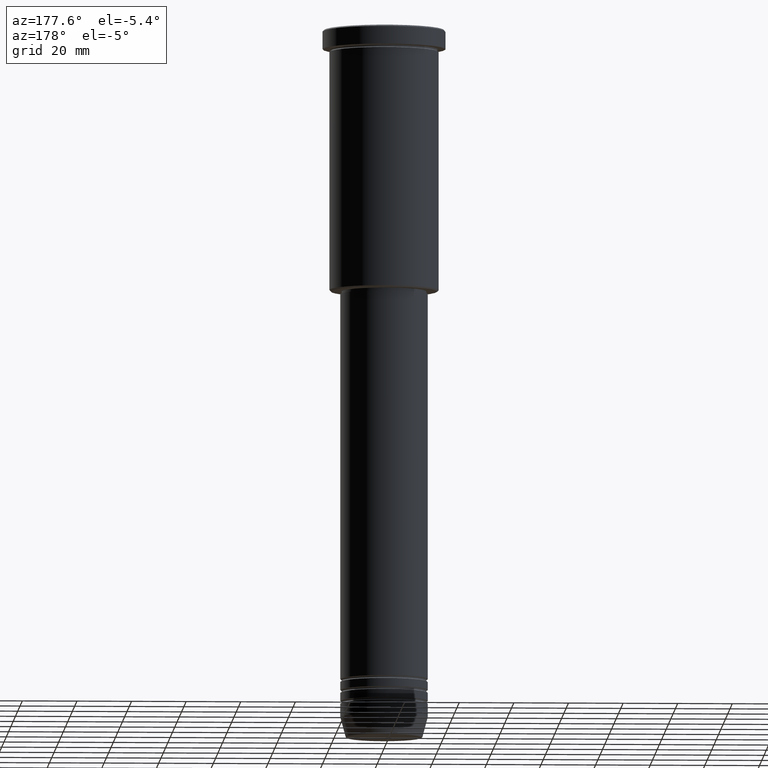
[diagram: clean part render]
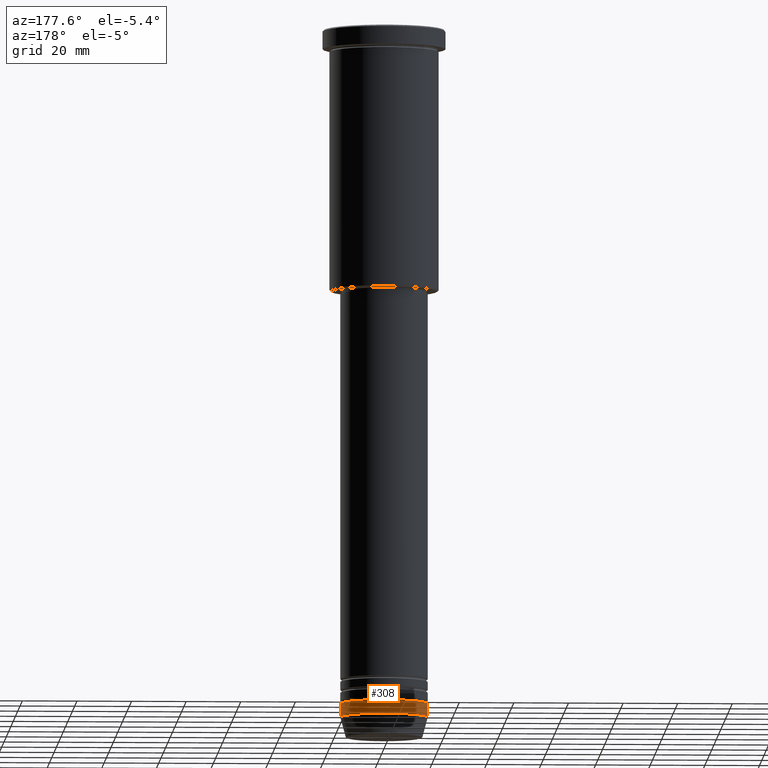
[diagram: same view with one face highlighted and labeled with its STEP entity id]
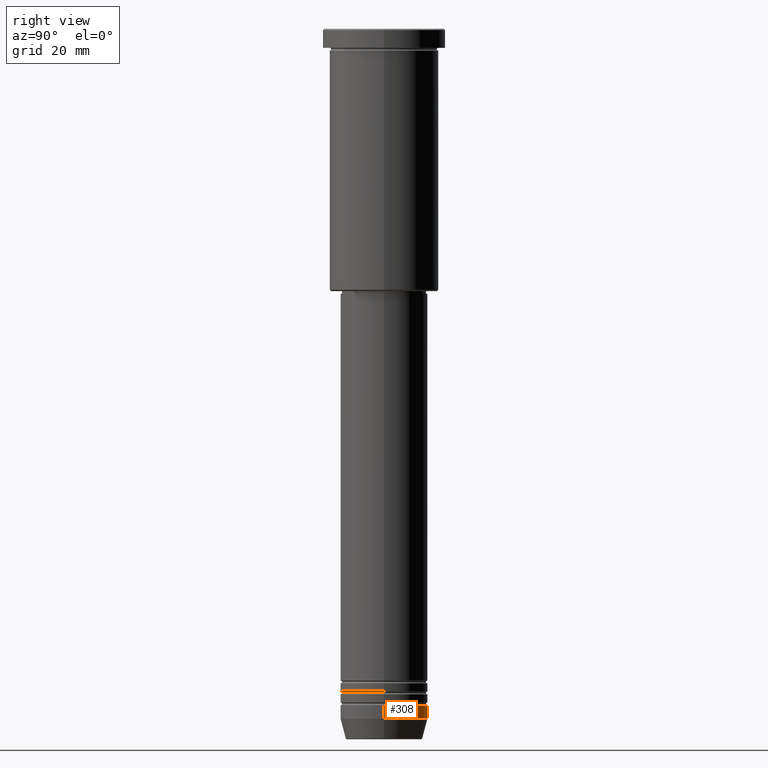
[diagram: same view with one face highlighted and labeled with its STEP entity id]
A machine part, auxiliary view. The second image highlights one B-rep face of the part: STEP entity #308.
A second angle (right view) of the same face is appended — the face is thin or edge-on in the first view.
In plain terms, the highlighted cylindrical surface (partial cylindrical patch) has radius 16 mm, axis along (-0, -0, 1).
Its self-contained STEP definition (entity closure, byte-faithful):
#15 = CIRCLE ( 'NONE', #512, 16.00000000000000000 ) ;
#31 = DIRECTION ( 'NONE',  ( 1.000000000000000000, 0.000000000000000000, 0.000000000000000000 ) ) ;
#93 = CARTESIAN_POINT ( 'NONE',  ( 0.000000000000000000, 0.000000000000000000, -252.5000000000000000 ) ) ;
#111 = CARTESIAN_POINT ( 'NONE',  ( -16.00000000000000000, 1.959434878635765131E-15, 0.000000000000000000 ) ) ;
#186 = DIRECTION ( 'NONE',  ( -0.000000000000000000, -0.000000000000000000, 1.000000000000000000 ) ) ;
#192 = AXIS2_PLACEMENT_3D ( 'NONE', #1033, #1112, #31 ) ;
#199 = EDGE_CURVE ( 'NONE', #420, #399, #274, .T. ) ;
#220 = LINE ( 'NONE', #111, #810 ) ;
#229 = CARTESIAN_POINT ( 'NONE',  ( 16.00000000000000000, 0.000000000000000000, -252.5000000000000000 ) ) ;
#271 = DIRECTION ( 'NONE',  ( 1.000000000000000000, 0.000000000000000000, 0.000000000000000000 ) ) ;
#274 = LINE ( 'NONE', #350, #739 ) ;
#295 = ORIENTED_EDGE ( 'NONE', *, *, #1044, .F. ) ;
#308 = ADVANCED_FACE ( 'NONE', ( #863 ), #750, .T. ) ;
#350 = CARTESIAN_POINT ( 'NONE',  ( 16.00000000000000000, 0.000000000000000000, 0.000000000000000000 ) ) ;
#399 = VERTEX_POINT ( 'NONE', #723 ) ;
#420 = VERTEX_POINT ( 'NONE', #229 ) ;
#445 = EDGE_CURVE ( 'NONE', #459, #640, #220, .T. ) ;
#457 = DIRECTION ( 'NONE',  ( -0.000000000000000000, -0.000000000000000000, 1.000000000000000000 ) ) ;
#459 = VERTEX_POINT ( 'NONE', #461 ) ;
#461 = CARTESIAN_POINT ( 'NONE',  ( -16.00000000000000000, 1.959434878635765131E-15, -252.5000000000000000 ) ) ;
#512 = AXIS2_PLACEMENT_3D ( 'NONE', #93, #457, #271 ) ;
#562 = ORIENTED_EDGE ( 'NONE', *, *, #199, .F. ) ;
#564 = EDGE_CURVE ( 'NONE', #420, #459, #15, .T. ) ;
#626 = DIRECTION ( 'NONE',  ( -0.000000000000000000, -0.000000000000000000, 1.000000000000000000 ) ) ;
#640 = VERTEX_POINT ( 'NONE', #759 ) ;
#663 = ORIENTED_EDGE ( 'NONE', *, *, #564, .T. ) ;
#720 = DIRECTION ( 'NONE',  ( 1.000000000000000000, 0.000000000000000000, 0.000000000000000000 ) ) ;
#723 = CARTESIAN_POINT ( 'NONE',  ( 16.00000000000000000, 0.000000000000000000, -247.5000000000000000 ) ) ;
#739 = VECTOR ( 'NONE', #1091, 1000.000000000000000 ) ;
#750 = CYLINDRICAL_SURFACE ( 'NONE', #192, 16.00000000000000000 ) ;
#759 = CARTESIAN_POINT ( 'NONE',  ( -16.00000000000000000, 1.959434878635765131E-15, -247.5000000000000000 ) ) ;
#786 = CIRCLE ( 'NONE', #1090, 16.00000000000000000 ) ;
#810 = VECTOR ( 'NONE', #186, 1000.000000000000000 ) ;
#863 = FACE_OUTER_BOUND ( 'NONE', #916, .T. ) ;
#875 = CARTESIAN_POINT ( 'NONE',  ( 0.000000000000000000, 0.000000000000000000, -247.5000000000000000 ) ) ;
#916 = EDGE_LOOP ( 'NONE', ( #663, #1047, #295, #562 ) ) ;
#1033 = CARTESIAN_POINT ( 'NONE',  ( 0.000000000000000000, 0.000000000000000000, 0.000000000000000000 ) ) ;
#1044 = EDGE_CURVE ( 'NONE', #399, #640, #786, .T. ) ;
#1047 = ORIENTED_EDGE ( 'NONE', *, *, #445, .T. ) ;
#1090 = AXIS2_PLACEMENT_3D ( 'NONE', #875, #626, #720 ) ;
#1091 = DIRECTION ( 'NONE',  ( -0.000000000000000000, -0.000000000000000000, 1.000000000000000000 ) ) ;
#1112 = DIRECTION ( 'NONE',  ( -0.000000000000000000, -0.000000000000000000, 1.000000000000000000 ) ) ;